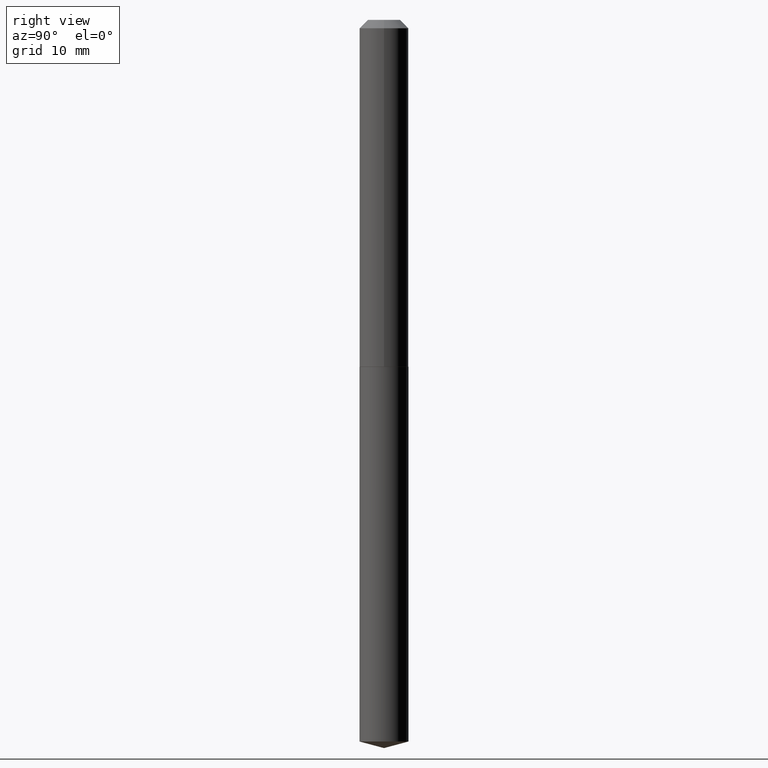
[diagram: clean part render]
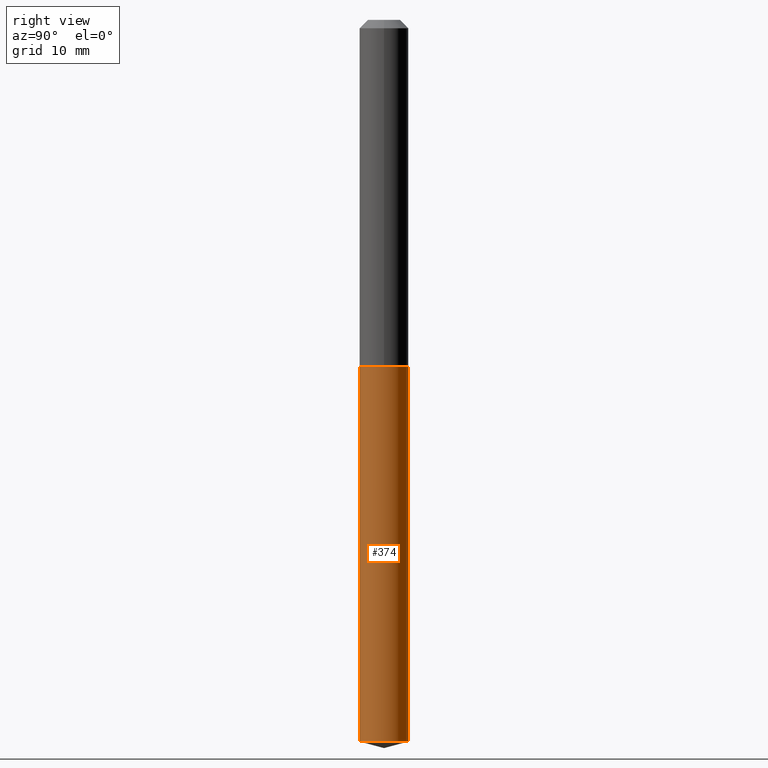
[diagram: same view with one face highlighted and labeled with its STEP entity id]
A machine part, right view. The second image highlights one B-rep face of the part: STEP entity #374.
In plain terms, the highlighted cylindrical surface (edge-blend (fillet) strip) has radius 2.3495 mm, axis along (-0, 0, 1).
Its self-contained STEP definition (entity closure, byte-faithful):
#10 = CARTESIAN_POINT ( 'NONE',  ( 3.203564136102528897E-29, -4.573840553884520788E-15, -1.310000000000000053 ) ) ;
#14 = VECTOR ( 'NONE', #357, 39.37007874015748143 ) ;
#31 = DIRECTION ( 'NONE',  ( -2.445479065471587317E-29, 3.491466646961025504E-15, 1.000000000000000000 ) ) ;
#37 = EDGE_LOOP ( 'NONE', ( #360, #109, #97, #283 ) ) ;
#58 = DIRECTION ( 'NONE',  ( -2.445479065471587317E-29, 3.491466646961025898E-15, 1.000000000000000000 ) ) ;
#61 = CARTESIAN_POINT ( 'NONE',  ( 6.664442057366835299E-29, -9.515015476176461963E-15, -2.725214699700122090 ) ) ;
#82 = VERTEX_POINT ( 'NONE', #243 ) ;
#91 = CIRCLE ( 'NONE', #172, 0.09249999999999999889 ) ;
#97 = ORIENTED_EDGE ( 'NONE', *, *, #152, .F. ) ;
#109 = ORIENTED_EDGE ( 'NONE', *, *, #116, .T. ) ;
#116 = EDGE_CURVE ( 'NONE', #187, #82, #265, .T. ) ;
#127 = VERTEX_POINT ( 'NONE', #279 ) ;
#151 = CARTESIAN_POINT ( 'NONE',  ( -6.459240476859475444E-16, -0.09250000000000457856, -1.309999999999999609 ) ) ;
#152 = EDGE_CURVE ( 'NONE', #377, #82, #344, .T. ) ;
#153 = CARTESIAN_POINT ( 'NONE',  ( 3.203564136102528897E-29, -4.573840553884520788E-15, -1.310000000000000053 ) ) ;
#157 = CYLINDRICAL_SURFACE ( 'NONE', #324, 0.09249999999999999889 ) ;
#162 = EDGE_CURVE ( 'NONE', #127, #377, #390, .T. ) ;
#172 = AXIS2_PLACEMENT_3D ( 'NONE', #61, #359, #181 ) ;
#181 = DIRECTION ( 'NONE',  ( -6.982962677686265922E-15, -1.000000000000000000, 5.906698364679487997E-15 ) ) ;
#187 = VERTEX_POINT ( 'NONE', #331 ) ;
#208 = DIRECTION ( 'NONE',  ( -6.982962677686265922E-15, -1.000000000000000000, 2.953349182339743999E-15 ) ) ;
#209 = CARTESIAN_POINT ( 'NONE',  ( 6.572520305781246129E-16, 0.09249999999999543310, -1.310000000000000275 ) ) ;
#243 = CARTESIAN_POINT ( 'NONE',  ( 6.572520305781594214E-16, 0.09249999999999543310, -1.310000000000000275 ) ) ;
#254 = DIRECTION ( 'NONE',  ( -6.982962677686265922E-15, -1.000000000000000000, 2.953349182339743999E-15 ) ) ;
#256 = AXIS2_PLACEMENT_3D ( 'NONE', #153, #58, #208 ) ;
#265 = LINE ( 'NONE', #209, #337 ) ;
#275 = EDGE_CURVE ( 'NONE', #127, #187, #91, .T. ) ;
#279 = CARTESIAN_POINT ( 'NONE',  ( -6.459240476859130317E-16, -0.09250000000000951905, -2.725214699700121646 ) ) ;
#282 = CARTESIAN_POINT ( 'NONE',  ( -6.459240476859475444E-16, -0.09250000000000457856, -1.309999999999999609 ) ) ;
#283 = ORIENTED_EDGE ( 'NONE', *, *, #162, .F. ) ;
#307 = FACE_OUTER_BOUND ( 'NONE', #37, .T. ) ;
#324 = AXIS2_PLACEMENT_3D ( 'NONE', #10, #362, #254 ) ;
#331 = CARTESIAN_POINT ( 'NONE',  ( 6.572520305781593228E-16, 0.09249999999999049261, -2.725214699700122534 ) ) ;
#337 = VECTOR ( 'NONE', #31, 39.37007874015748143 ) ;
#344 = CIRCLE ( 'NONE', #256, 0.09249999999999999889 ) ;
#357 = DIRECTION ( 'NONE',  ( -2.445479065471587317E-29, 3.491466646961025504E-15, 1.000000000000000000 ) ) ;
#359 = DIRECTION ( 'NONE',  ( -2.445479065471587317E-29, 3.491466646961025898E-15, 1.000000000000000000 ) ) ;
#360 = ORIENTED_EDGE ( 'NONE', *, *, #275, .T. ) ;
#362 = DIRECTION ( 'NONE',  ( -2.445479065471587317E-29, 3.491466646961025898E-15, 1.000000000000000000 ) ) ;
#374 = ADVANCED_FACE ( 'NONE', ( #307 ), #157, .T. ) ;
#377 = VERTEX_POINT ( 'NONE', #282 ) ;
#390 = LINE ( 'NONE', #151, #14 ) ;